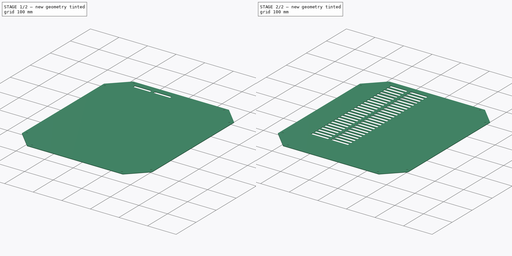
[diagram: build sequence overview — one tinted view per stage of 2, left to right]
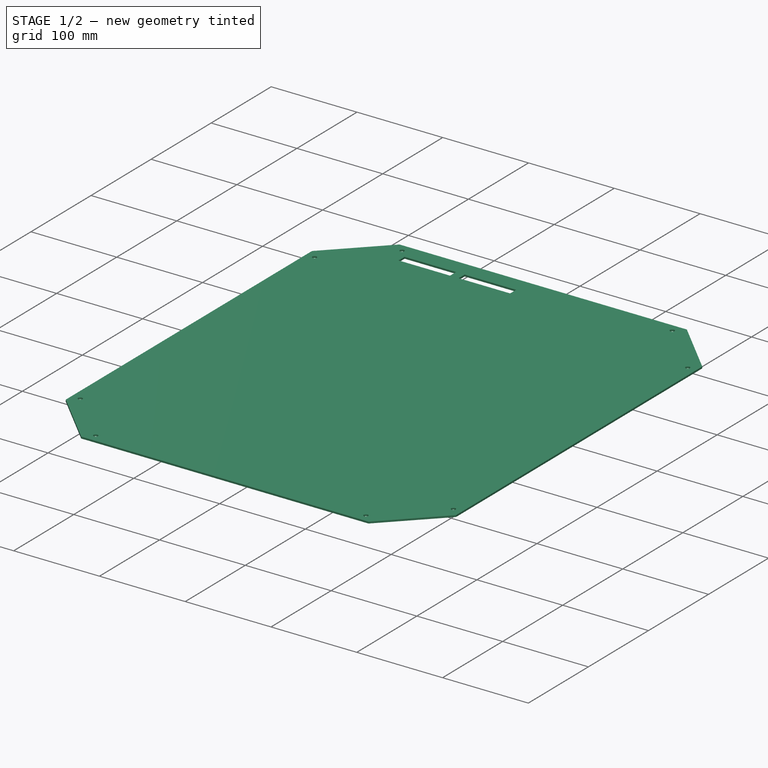
[diagram: stage 1 of 2 — iso view after this stage's code; geometry added in this stage tinted green]
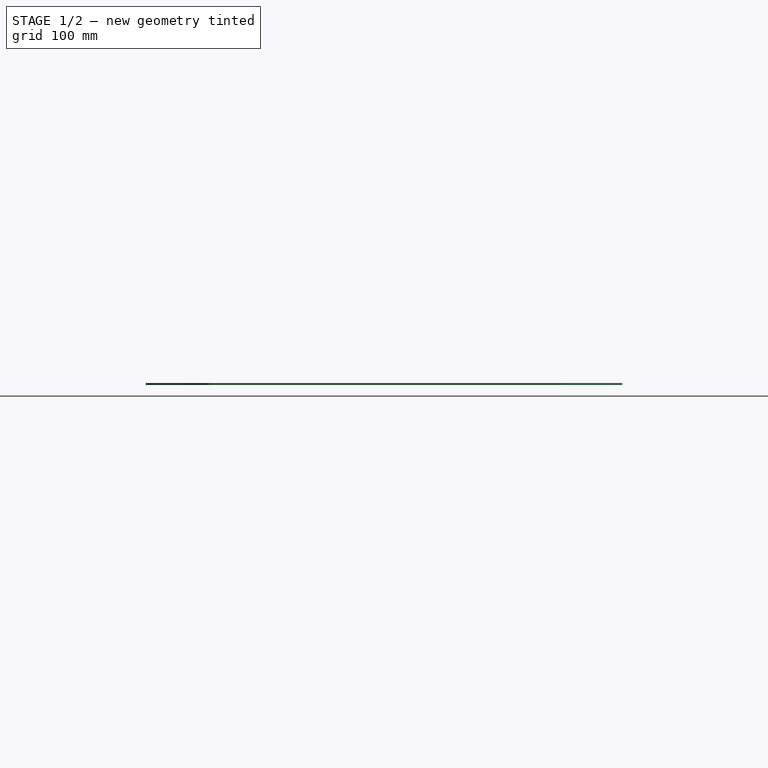
[diagram: stage 1 of 2 — front view after this stage's code; geometry added in this stage tinted green]
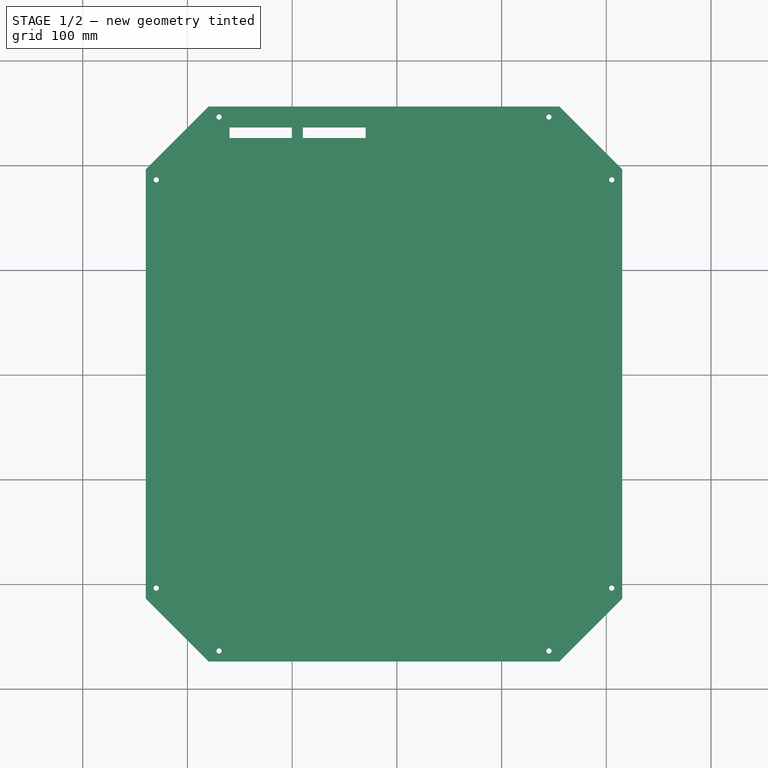
[diagram: stage 1 of 2 — top view after this stage's code; geometry added in this stage tinted green]
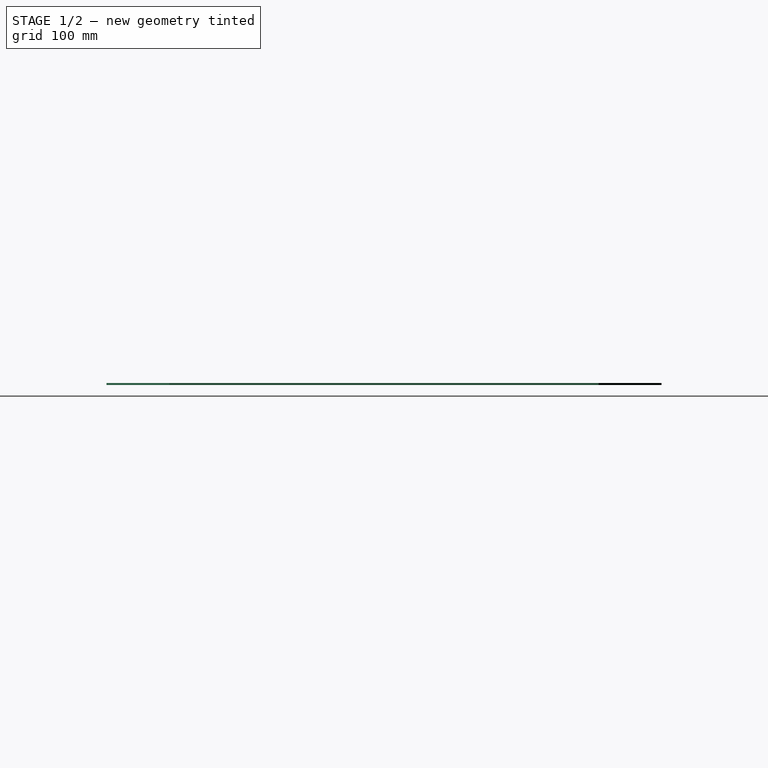
[diagram: stage 1 of 2 — right view after this stage's code; geometry added in this stage tinted green]
FCSTD DOCUMENT  (FreeCAD 0.16R6698 (Git))
Label: Back_Side_Plate
License: All rights reserved
LicenseURL: http://en.wikipedia.org/wiki/All_rights_reserved
objects: Sketcher::SketchObject×2, PartDesign::Pad×1, PartDesign::Pocket×1, PartDesign::LinearPattern×1
note: 7 computed .brp shape members not serialized (recipe doc carries the construction recipe); baked Part::Feature solids carry a one-line shape summary decoded from their .brp

FEATURE [Sketcher::SketchObject] Sketch
  sketch-geometry (16):
    g0: LineSegment StartX=-239.8 StartY=196.363 StartZ=0 EndX=-179.8 EndY=256.363 EndZ=0
    g1: LineSegment StartX=-179.8 StartY=256.363 StartZ=0 EndX=155.2 EndY=256.363 EndZ=0
    g2: LineSegment StartX=155.2 StartY=256.363 StartZ=0 EndX=215.2 EndY=196.363 EndZ=0
    g3: LineSegment StartX=215.2 StartY=196.363 StartZ=0 EndX=215.2 EndY=-213.637 EndZ=0
    g4: LineSegment StartX=215.2 StartY=-213.637 StartZ=0 EndX=155.2 EndY=-273.637 EndZ=0
    g5: LineSegment StartX=155.2 StartY=-273.637 StartZ=0 EndX=-179.8 EndY=-273.637 EndZ=0
    g6: LineSegment StartX=-179.8 StartY=-273.637 StartZ=0 EndX=-239.8 EndY=-213.637 EndZ=0
    g7: LineSegment StartX=-239.8 StartY=-213.637 StartZ=0 EndX=-239.8 EndY=196.363 EndZ=0
    g8: Circle CenterX=-169.8 CenterY=246.363 CenterZ=0 NormalX=0 NormalY=0 NormalZ=1 Radius=2.5
    g9: Circle CenterX=145.2 CenterY=246.363 CenterZ=0 NormalX=0 NormalY=0 NormalZ=1 Radius=2.5
    g10: Circle CenterX=205.2 CenterY=186.363 CenterZ=0 NormalX=0 NormalY=0 NormalZ=1 Radius=2.5
    g11: Circle CenterX=205.2 CenterY=-203.637 CenterZ=0 NormalX=0 NormalY=0 NormalZ=1 Radius=2.5
    g12: Circle CenterX=145.2 CenterY=-263.637 CenterZ=0 NormalX=0 NormalY=0 NormalZ=1 Radius=2.5
    g13: Circle CenterX=-169.8 CenterY=-263.637 CenterZ=0 NormalX=0 NormalY=0 NormalZ=1 Radius=2.5
    g14: Circle CenterX=-229.8 CenterY=-203.637 CenterZ=0 NormalX=0 NormalY=0 NormalZ=1 Radius=2.5
    g15: Circle CenterX=-229.8 CenterY=186.363 CenterZ=0 NormalX=0 NormalY=0 NormalZ=1 Radius=2.5
  constraints (40):
    c: Coincident(g0,g1)
    c: Horizontal(g1)
    c: Coincident(g1,g2)
    c: Coincident(g2,g3)
    c: Vertical(g3)
    c: Coincident(g3,g4)
    c: Coincident(g4,g5)
    c: Horizontal(g5)
    c: Coincident(g5,g6)
    c: Coincident(g6,g7)
    c: Coincident(g7,g0)
    c: Vertical(g7)
    c: DistanceX(g0,g0) = 60
    c: DistanceY(g0,g0) = 60
    c: DistanceX(g2,g2) = 60
    c: DistanceY(g2,g2) = 60
    c: DistanceX(g4,g4) = 60
    c: DistanceY(g4,g4) = 60
    c: DistanceX(g6,g6) = 60
    c: DistanceY(g6,g6) = 60
    c: DistanceY(g7,g7) = 410
    c: DistanceX(g1,g1) = 335
    c: Radius(g15) = 2.5
    c: Equal(g15, g8-g14) x7
    c: DistanceX(g0,g8) = 10
    c: DistanceY(g15,g0) = 10
    c: DistanceX(g0,g15) = 10
    c: DistanceY(g8,g0) = 10
    c: DistanceX(g9,g1) = 10
    c: DistanceY(g9,g1) = 10
    c: DistanceX(g10,g2) = 10
    c: DistanceY(g10,g2) = 10
    c: DistanceY(g4,g12) = 10
    c: DistanceX(g12,g4) = 10
    c: DistanceY(g3,g11) = 10
    c: DistanceX(g11,g3) = 10
    c: DistanceX(g6,g14) = 10
    c: DistanceY(g6,g14) = 10
    c: DistanceY(g5,g13) = 10
    c: DistanceX(g5,g13) = 10
FEATURE [PartDesign::Pad] Pad
  Length = 2
  Length2 = 100
  Sketch = -> Sketch
  Type = 0
FEATURE [Sketcher::SketchObject] Sketch001
  ExternalGeometry = -> [Pad]
  Placement = pos=(0,0,2) rot=(0,0,1;0rad)
  Support = -> Pad [Face18]
  sketch-geometry (8):
    g0: LineSegment StartX=-159.8 StartY=236.363 StartZ=0 EndX=-99.8003 EndY=236.363 EndZ=0
    g1: LineSegment StartX=-29.8003 StartY=236.363 StartZ=0 EndX=-29.8003 EndY=226.363 EndZ=0
    g2: LineSegment StartX=-159.8 StartY=226.363 StartZ=0 EndX=-99.8003 EndY=226.363 EndZ=0
    g3: LineSegment StartX=-159.8 StartY=226.363 StartZ=0 EndX=-159.8 EndY=236.363 EndZ=0
    g4: LineSegment StartX=-99.8003 StartY=236.363 StartZ=0 EndX=-99.8003 EndY=226.363 EndZ=0
    g5: LineSegment StartX=-89.8003 StartY=226.363 StartZ=0 EndX=-89.8003 EndY=236.363 EndZ=0
    g6: LineSegment StartX=-89.8003 StartY=236.363 StartZ=0 EndX=-29.8003 EndY=236.363 EndZ=0
    g7: LineSegment StartX=-89.8003 StartY=226.363 StartZ=0 EndX=-29.8003 EndY=226.363 EndZ=0
  constraints (22):
    c: Coincident(g6,g1)
    c: Coincident(g3,g0)
    c: Horizontal(g0)
    c: Vertical(g1)
    c: DistanceY(g0,g-3) = 20
    c: Horizontal(g2)
    c: Coincident(g3,g2)
    c: Coincident(g1,g7)
    c: DistanceY(g3,g3) = 10
    c: Vertical(g4)
    c: Vertical(g5)
    c: Coincident(g0,g4)
    c: Coincident(g6,g5)
    c: Tangent(g0,g6)
    c: Coincident(g2,g4)
    c: Coincident(g7,g5)
    c: Tangent(g2,g7)
    c: DistanceX(g0,g0) = 60
    c: DistanceX(g0,g5) = 10
    c: DistanceX(g6,g6) = 60
    c: DistanceX(g2,g2) = 60
    c: DistanceX(g-4,g2) = 80
FEATURE [PartDesign::Pocket] Pocket
  Length = 5
  Sketch = -> Sketch001
  Type = 0
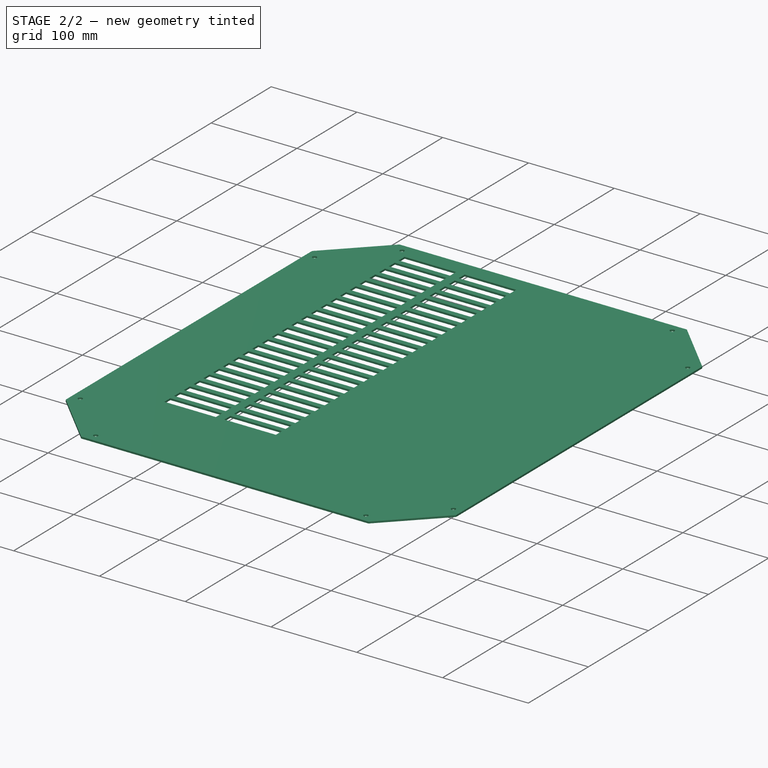
[diagram: stage 2 of 2 — iso view after this stage's code; geometry added in this stage tinted green]
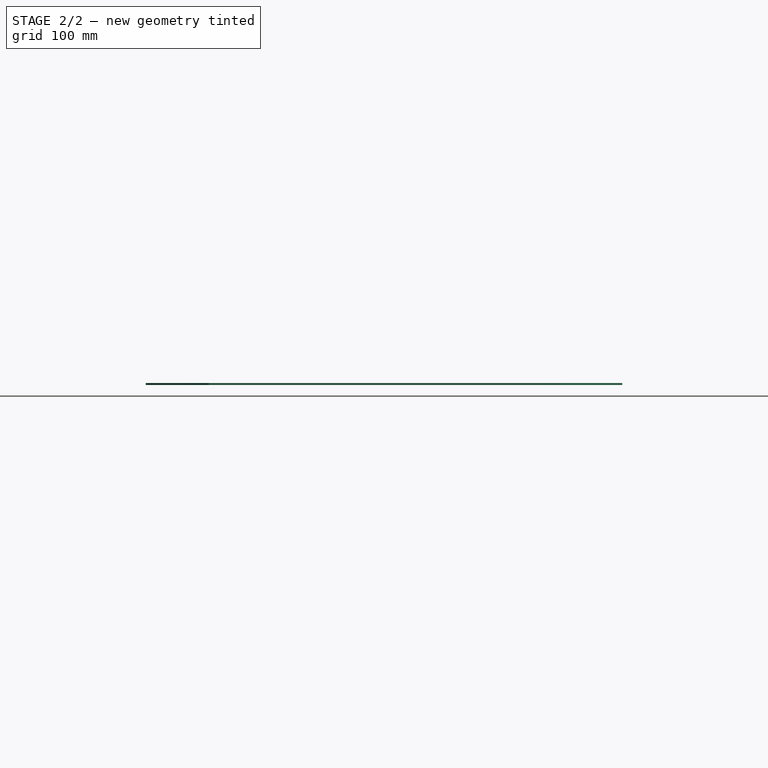
[diagram: stage 2 of 2 — front view after this stage's code; geometry added in this stage tinted green]
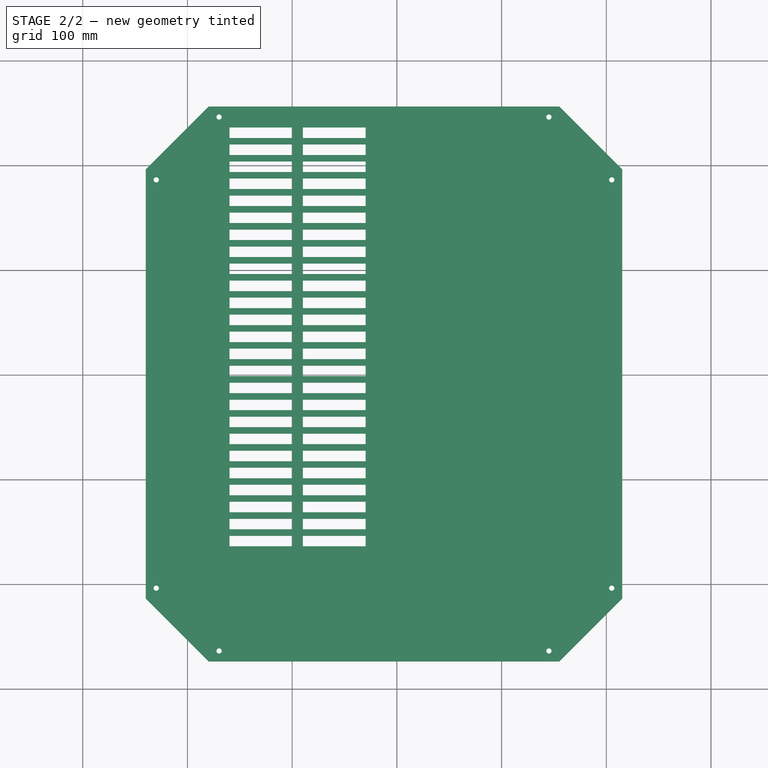
[diagram: stage 2 of 2 — top view after this stage's code; geometry added in this stage tinted green]
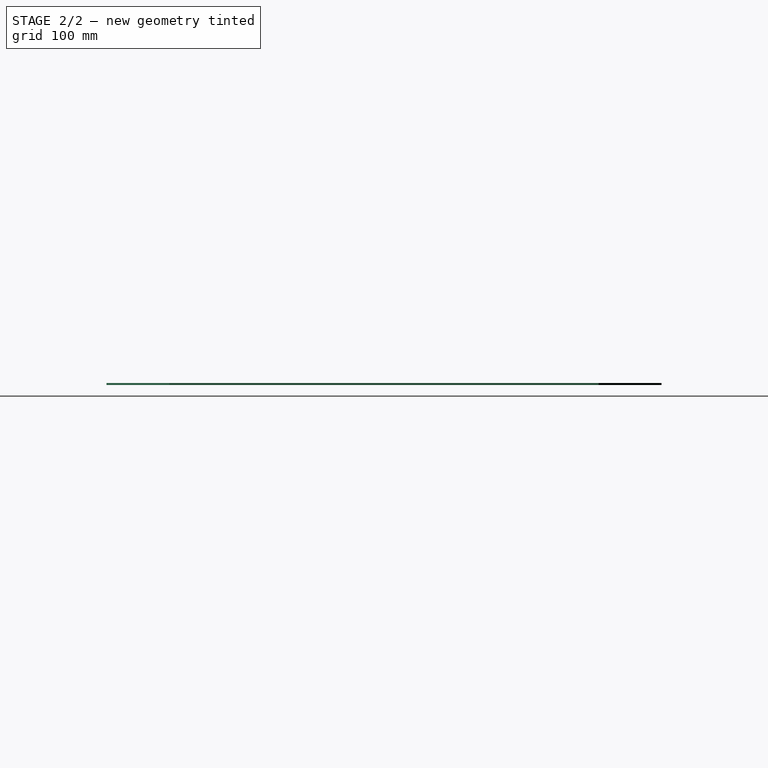
[diagram: stage 2 of 2 — right view after this stage's code; geometry added in this stage tinted green]
FEATURE [PartDesign::LinearPattern] LinearPattern
  Direction = -> Sketch001 [V_Axis]
  Length = 390
  Occurrences = 25
  Originals = -> [Pocket]
  Reversed = true
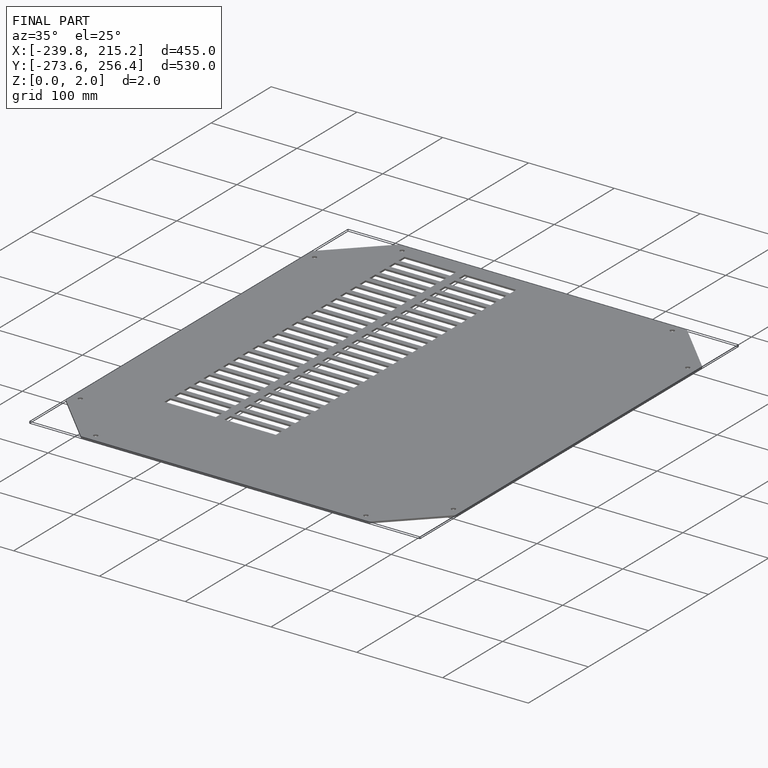
[diagram: finished part — iso view with bounding-box wireframe]
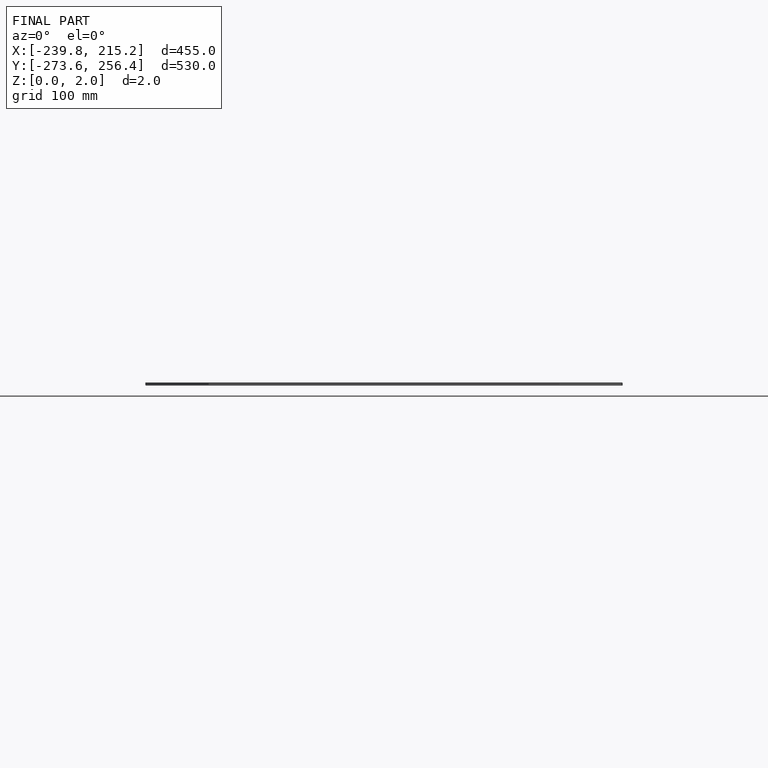
[diagram: finished part — front view with bounding-box wireframe]
